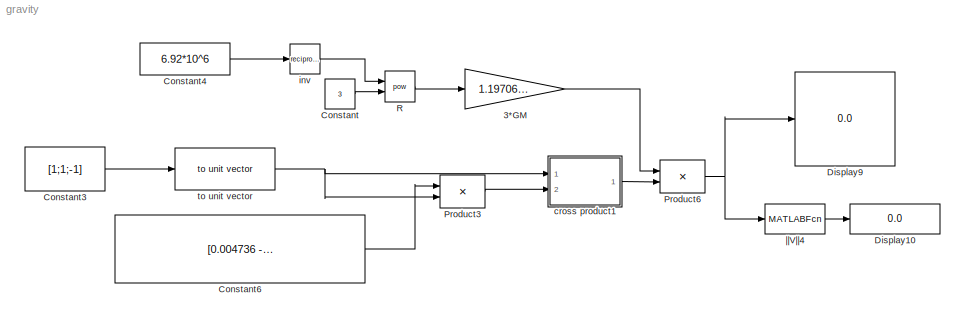
MODEL gravity
KIND model
BLOCK [Gain] 3*GM
  Gain = 1.19706264*10^15
BLOCK [Constant] Constant
  Value = 3
BLOCK [Constant] Constant3
  Value = [1;1;-1]
BLOCK [Constant] Constant4
  Value = 6.92*10^6
BLOCK [Constant] Constant6
  Value = [0.004736 -0.002368 -0.002368; -0.002368 0.004736 -0.002368;-0.002368 -0.002368 0.004736]
BLOCK [Display] Display10
  Decimation = 1
  Ports = [1]
BLOCK [Display] Display9
  Decimation = 1
  Ports = [1]
BLOCK [Product] Product3
  InputSameDT = off
  Multiplication = Matrix(*)
  Ports = [2, 1]
  RndMeth = Floor
BLOCK [Product] Product6
  InputSameDT = off
  Ports = [2, 1]
  RndMeth = Floor
BLOCK [Math] R
  Operator = pow
  Ports = [2, 1]
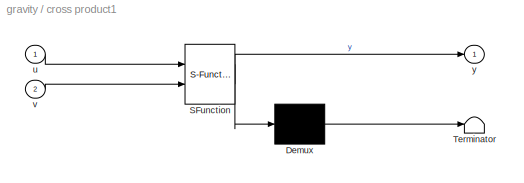
BLOCK [SubSystem] cross product1
  MaskDescription = Embedded MATLAB block
  MaskDisplay = disp('crossproduct');
  MaskIconFrame = on
  MaskIconOpaque = off
  MaskIconRotate = none
  MaskIconUnits = autoscale
  MaskSelfModifiable = on
  MaskType = Stateflow
  MinAlgLoopOccurrences = off
  Ports = [2, 1]
  RTWSystemCode = Auto
  TreatAsAtomicUnit = off
BLOCK [Demux] cross product1/ Demux 
  Outputs = 1
  Ports = [1, 1]
BLOCK [S-Function] cross product1/ SFunction 
  FunctionName = sf_sfun
  PortCounts = [2 2]
  Ports = [2, 2]
  Tag = Stateflow S-Function gravity 3
BLOCK [Terminator] cross product1/ Terminator 
BLOCK [Inport] cross product1/u
  IconDisplay = Port number
  LatchInput = off
  Port = 1
BLOCK [Inport] cross product1/v
  IconDisplay = Port number
  LatchInput = off
  Port = 2
BLOCK [Outport] cross product1/y
  BusOutputAsStruct = off
  IconDisplay = Port number
BLOCK [Math] inv
  Operator = reciprocal
  Ports = [1, 1]
BLOCK [Reference] to unit vector  REF=Accessories_lib/Math utilities/Vector operations/to unit vector
  Ports = [1, 1]
  ShowPortLabels = on
  SourceBlock = Accessories_lib/Math utilities/Vector operations/to unit vector
  SourceType = SubSystem
BLOCK [MATLABFcn] ||V||4
  MATLABFcn = norm
LINE 3*GM:1 -> Product6:1
LINE Constant3:1 -> to unit vector:1
LINE Constant4:1 -> inv:1
LINE Constant6:1 -> Product3:1
LINE Constant:1 -> R:2
LINE Product3:1 -> cross product1:2
NET Product6:1 -> Display9:1, ||V||4:1
LINE R:1 -> 3*GM:1
LINE cross product1/ Demux :1 -> cross product1/ Terminator :1
LINE cross product1/ SFunction :1 -> cross product1/ Demux :1
LINE cross product1/ SFunction :2 -> cross product1/y:1
LINE cross product1/u:1 -> cross product1/ SFunction :1
LINE cross product1/v:1 -> cross product1/ SFunction :2
LINE cross product1:1 -> Product6:2
LINE inv:1 -> R:1
NET to unit vector:1 -> Product3:2, cross product1:1
LINE ||V||4:1 -> Display10:1
note: NET lines group one-source signal fan-out (src -> all destinations, sorted); 1:1 wires keep LINE
CHART cross product1 states=1 transitions=1
  STATE_LABEL 'eML_blk_kernel()'
